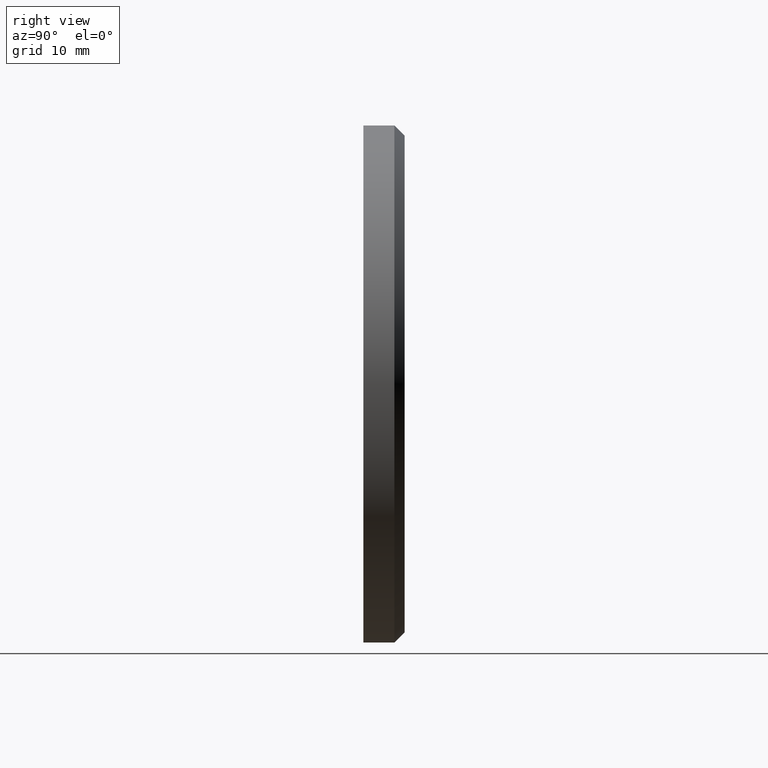
[diagram: clean part render]
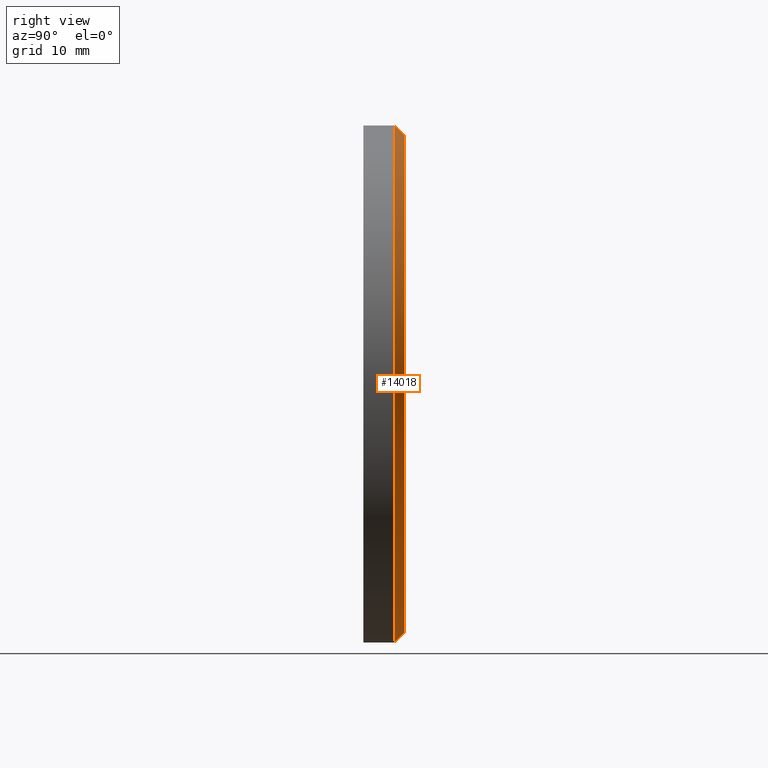
[diagram: same view with one face highlighted and labeled with its STEP entity id]
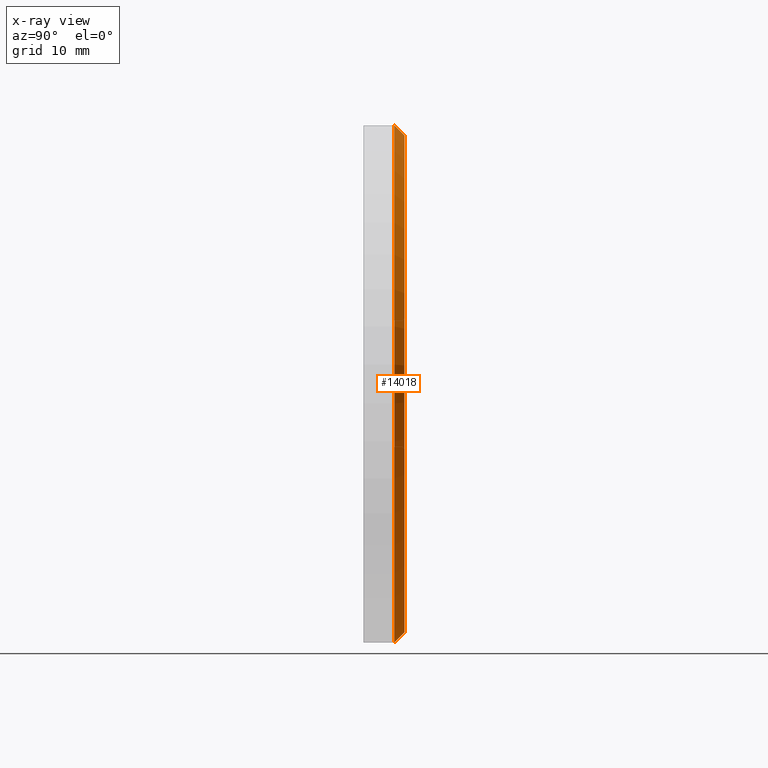
[diagram: x-ray of the same camera — body ghosted, the highlighted face saturated]
A machine part, right view. The second image highlights one B-rep face of the part: STEP entity #14018.
The next image is the same camera in x-ray: the body ghosted, the highlighted face saturated — about 0% of this face is hidden behind the body in this view.
In plain terms, the highlighted conical surface has half-angle 45 deg.
Its self-contained STEP definition (entity closure, byte-faithful):
#1103 = CARTESIAN_POINT ( 'NONE',  ( 0.000000000000000000, 3.000000000000009770, 0.000000000000000000 ) ) ;
#1182 = DIRECTION ( 'NONE',  ( 0.000000000000000000, -1.000000000000000000, 0.000000000000000000 ) ) ;
#1248 = DIRECTION ( 'NONE',  ( 0.000000000000000000, -1.000000000000000000, 0.000000000000000000 ) ) ;
#1283 = CARTESIAN_POINT ( 'NONE',  ( 3.000384657911015469E-15, 4.000000000000000000, 24.00000000000000711 ) ) ;
#1428 = EDGE_CURVE ( 'NONE', #8992, #12769, #6587, .T. ) ;
#1466 = CIRCLE ( 'NONE', #3423, 24.00000000000000711 ) ;
#2232 = FACE_OUTER_BOUND ( 'NONE', #6684, .T. ) ;
#3423 = AXIS2_PLACEMENT_3D ( 'NONE', #7718, #7564, #14694 ) ;
#3752 = EDGE_CURVE ( 'NONE', #12769, #7714, #4277, .T. ) ;
#4277 = CIRCLE ( 'NONE', #10600, 25.00000000000000000 ) ;
#5662 = EDGE_CURVE ( 'NONE', #11738, #8992, #1466, .T. ) ;
#5827 = CARTESIAN_POINT ( 'NONE',  ( 2.939152317953648683E-15, 4.000000000000000000, 24.00000000000000711 ) ) ;
#6030 = VECTOR ( 'NONE', #14020, 1000.000000000000000 ) ;
#6208 = VECTOR ( 'NONE', #14225, 1000.000000000000000 ) ;
#6587 = LINE ( 'NONE', #15196, #6208 ) ;
#6684 = EDGE_LOOP ( 'NONE', ( #10824, #7679, #12505, #7819 ) ) ;
#6984 = DIRECTION ( 'NONE',  ( 0.000000000000000000, 0.000000000000000000, -1.000000000000000000 ) ) ;
#7564 = DIRECTION ( 'NONE',  ( 0.000000000000000000, 1.000000000000000000, 0.000000000000000000 ) ) ;
#7679 = ORIENTED_EDGE ( 'NONE', *, *, #8766, .T. ) ;
#7714 = VERTEX_POINT ( 'NONE', #11060 ) ;
#7718 = CARTESIAN_POINT ( 'NONE',  ( 0.000000000000000000, 4.000000000000000000, 0.000000000000000000 ) ) ;
#7819 = ORIENTED_EDGE ( 'NONE', *, *, #1428, .F. ) ;
#8224 = CONICAL_SURFACE ( 'NONE', #15434, 24.00000000000000711, 0.7853981633974500554 ) ;
#8766 = EDGE_CURVE ( 'NONE', #11738, #7714, #12923, .T. ) ;
#8992 = VERTEX_POINT ( 'NONE', #10926 ) ;
#9257 = CARTESIAN_POINT ( 'NONE',  ( 0.000000000000000000, 3.000000000000009770, -25.00000000000000000 ) ) ;
#10600 = AXIS2_PLACEMENT_3D ( 'NONE', #1103, #1248, #15399 ) ;
#10824 = ORIENTED_EDGE ( 'NONE', *, *, #5662, .F. ) ;
#10926 = CARTESIAN_POINT ( 'NONE',  ( 0.000000000000000000, 4.000000000000000000, -24.00000000000000711 ) ) ;
#11060 = CARTESIAN_POINT ( 'NONE',  ( 3.061616997868383043E-15, 3.000000000000009770, 25.00000000000000000 ) ) ;
#11738 = VERTEX_POINT ( 'NONE', #1283 ) ;
#12505 = ORIENTED_EDGE ( 'NONE', *, *, #3752, .F. ) ;
#12769 = VERTEX_POINT ( 'NONE', #9257 ) ;
#12923 = LINE ( 'NONE', #5827, #6030 ) ;
#14018 = ADVANCED_FACE ( 'NONE', ( #2232 ), #8224, .T. ) ;
#14020 = DIRECTION ( 'NONE',  ( 8.659560562354950115E-17, -0.7071067811865463515, 0.7071067811865487940 ) ) ;
#14129 = CARTESIAN_POINT ( 'NONE',  ( 0.000000000000000000, 4.000000000000000000, 0.000000000000000000 ) ) ;
#14225 = DIRECTION ( 'NONE',  ( 0.000000000000000000, -0.7071067811865463515, -0.7071067811865487940 ) ) ;
#14694 = DIRECTION ( 'NONE',  ( 0.000000000000000000, 0.000000000000000000, 1.000000000000000000 ) ) ;
#15196 = CARTESIAN_POINT ( 'NONE',  ( 0.000000000000000000, 4.000000000000000000, -24.00000000000000711 ) ) ;
#15399 = DIRECTION ( 'NONE',  ( 0.000000000000000000, 0.000000000000000000, 1.000000000000000000 ) ) ;
#15434 = AXIS2_PLACEMENT_3D ( 'NONE', #14129, #1182, #6984 ) ;